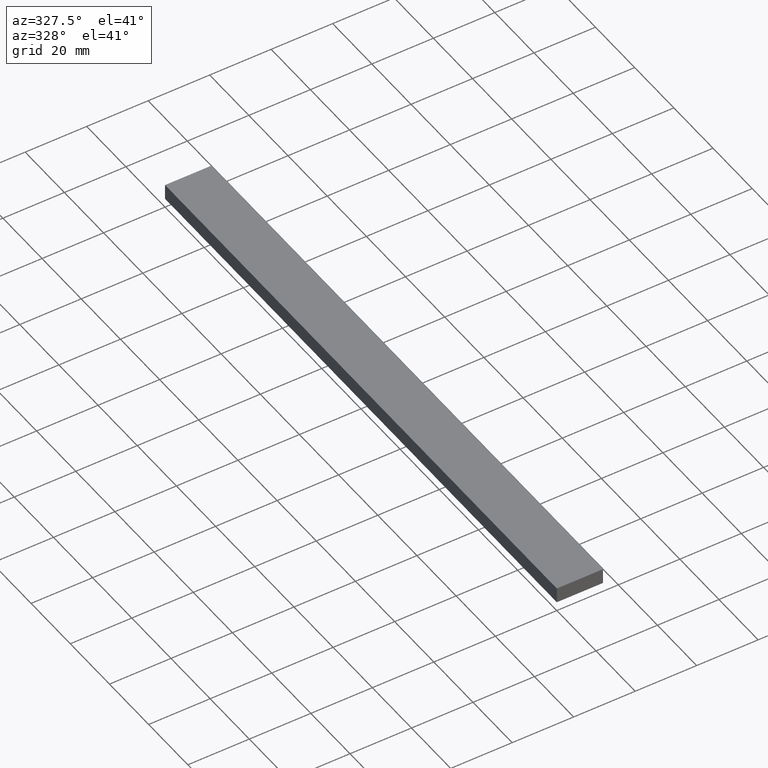
[diagram: clean part render]
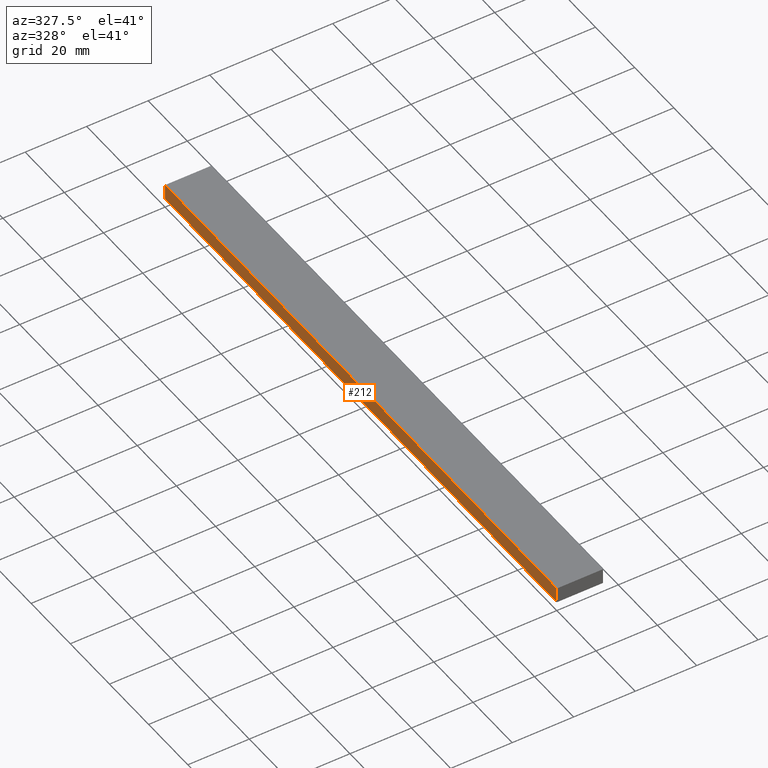
[diagram: same view with one face highlighted and labeled with its STEP entity id]
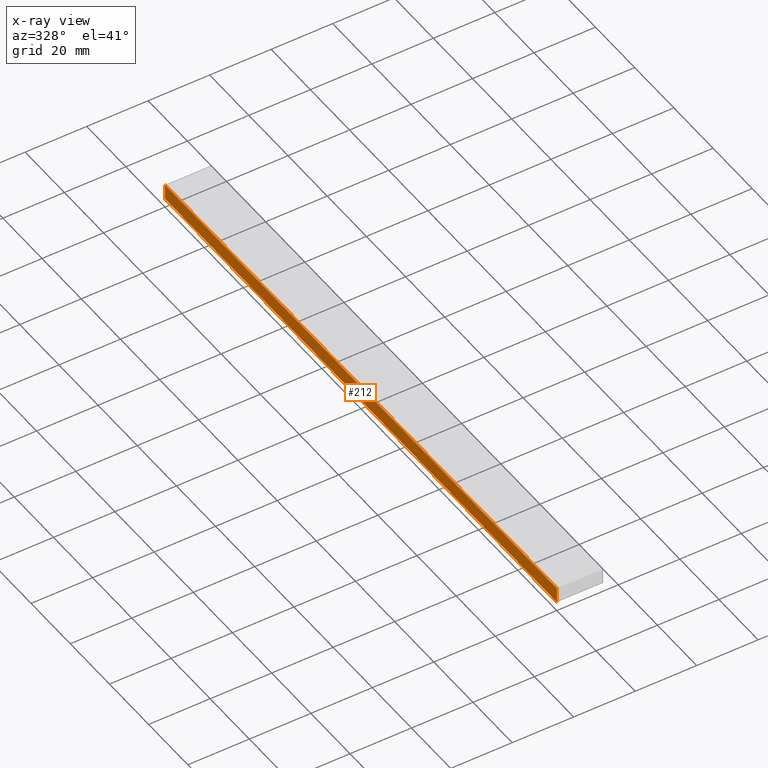
[diagram: x-ray of the same camera — body ghosted, the highlighted face saturated]
A machine part, auxiliary view. The second image highlights one B-rep face of the part: STEP entity #212.
The next image is the same camera in x-ray: the body ghosted, the highlighted face saturated — about 0% of this face is hidden behind the body in this view.
In plain terms, the highlighted planar face has unit normal (1, 0, 0).
Its self-contained STEP definition (entity closure, byte-faithful):
#4 = DIRECTION ( 'NONE',  ( 0.0000000000000000000, 0.0000000000000000000, -1.000000000000000000 ) ) ;
#5 = EDGE_CURVE ( 'NONE', #24, #76, #110, .T. ) ;
#9 = VECTOR ( 'NONE', #136, 1000.000000000000000 ) ;
#13 = ORIENTED_EDGE ( 'NONE', *, *, #126, .F. ) ;
#24 = VERTEX_POINT ( 'NONE', #83 ) ;
#27 = DIRECTION ( 'NONE',  ( 0.0000000000000000000, -1.000000000000000000, 0.0000000000000000000 ) ) ;
#31 = LINE ( 'NONE', #213, #56 ) ;
#34 = ORIENTED_EDGE ( 'NONE', *, *, #5, .F. ) ;
#56 = VECTOR ( 'NONE', #66, 1000.000000000000000 ) ;
#57 = ORIENTED_EDGE ( 'NONE', *, *, #62, .T. ) ;
#62 = EDGE_CURVE ( 'NONE', #231, #76, #31, .T. ) ;
#65 = CARTESIAN_POINT ( 'NONE',  ( 0.0000000000000000000, 200.0000000000000000, 0.0000000000000000000 ) ) ;
#66 = DIRECTION ( 'NONE',  ( 0.0000000000000000000, 0.0000000000000000000, 1.000000000000000000 ) ) ;
#69 = VECTOR ( 'NONE', #123, 1000.000000000000000 ) ;
#76 = VERTEX_POINT ( 'NONE', #88 ) ;
#83 = CARTESIAN_POINT ( 'NONE',  ( 0.0000000000000000000, 200.0000000000000000, 5.000000000000000000 ) ) ;
#88 = CARTESIAN_POINT ( 'NONE',  ( 0.0000000000000000000, 0.0000000000000000000, 5.000000000000000000 ) ) ;
#90 = ORIENTED_EDGE ( 'NONE', *, *, #170, .T. ) ;
#99 = LINE ( 'NONE', #127, #69 ) ;
#102 = DIRECTION ( 'NONE',  ( 1.000000000000000000, 0.0000000000000000000, 0.0000000000000000000 ) ) ;
#110 = LINE ( 'NONE', #121, #9 ) ;
#121 = CARTESIAN_POINT ( 'NONE',  ( 0.0000000000000000000, 1000.000000000000000, 5.000000000000000000 ) ) ;
#123 = DIRECTION ( 'NONE',  ( 0.0000000000000000000, 0.0000000000000000000, 1.000000000000000000 ) ) ;
#125 = CARTESIAN_POINT ( 'NONE',  ( 0.0000000000000000000, 0.0000000000000000000, 0.0000000000000000000 ) ) ;
#126 = EDGE_CURVE ( 'NONE', #202, #24, #99, .T. ) ;
#127 = CARTESIAN_POINT ( 'NONE',  ( 0.0000000000000000000, 200.0000000000000000, 0.0000000000000000000 ) ) ;
#131 = VECTOR ( 'NONE', #27, 1000.000000000000000 ) ;
#136 = DIRECTION ( 'NONE',  ( 0.0000000000000000000, -1.000000000000000000, 0.0000000000000000000 ) ) ;
#163 = LINE ( 'NONE', #207, #131 ) ;
#169 = EDGE_LOOP ( 'NONE', ( #57, #34, #13, #90 ) ) ;
#170 = EDGE_CURVE ( 'NONE', #202, #231, #163, .T. ) ;
#185 = PLANE ( 'NONE',  #217 ) ;
#202 = VERTEX_POINT ( 'NONE', #65 ) ;
#207 = CARTESIAN_POINT ( 'NONE',  ( 0.0000000000000000000, 1000.000000000000000, 0.0000000000000000000 ) ) ;
#212 = ADVANCED_FACE ( 'NONE', ( #233 ), #185, .F. ) ;
#213 = CARTESIAN_POINT ( 'NONE',  ( 0.0000000000000000000, 0.0000000000000000000, 0.0000000000000000000 ) ) ;
#214 = CARTESIAN_POINT ( 'NONE',  ( 0.0000000000000000000, 1000.000000000000000, 0.0000000000000000000 ) ) ;
#217 = AXIS2_PLACEMENT_3D ( 'NONE', #214, #102, #4 ) ;
#231 = VERTEX_POINT ( 'NONE', #125 ) ;
#233 = FACE_OUTER_BOUND ( 'NONE', #169, .T. ) ;